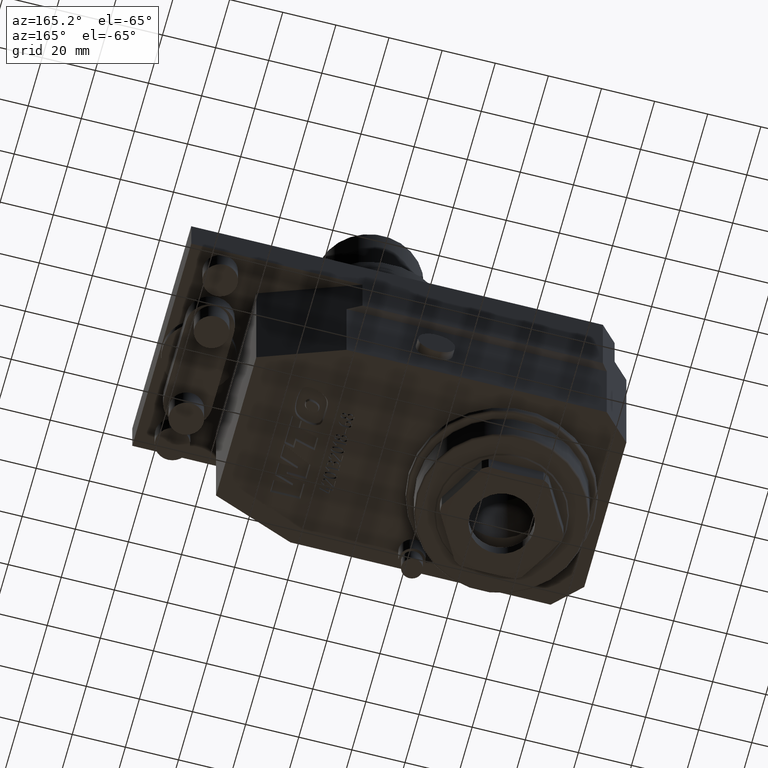
[diagram: clean part render]
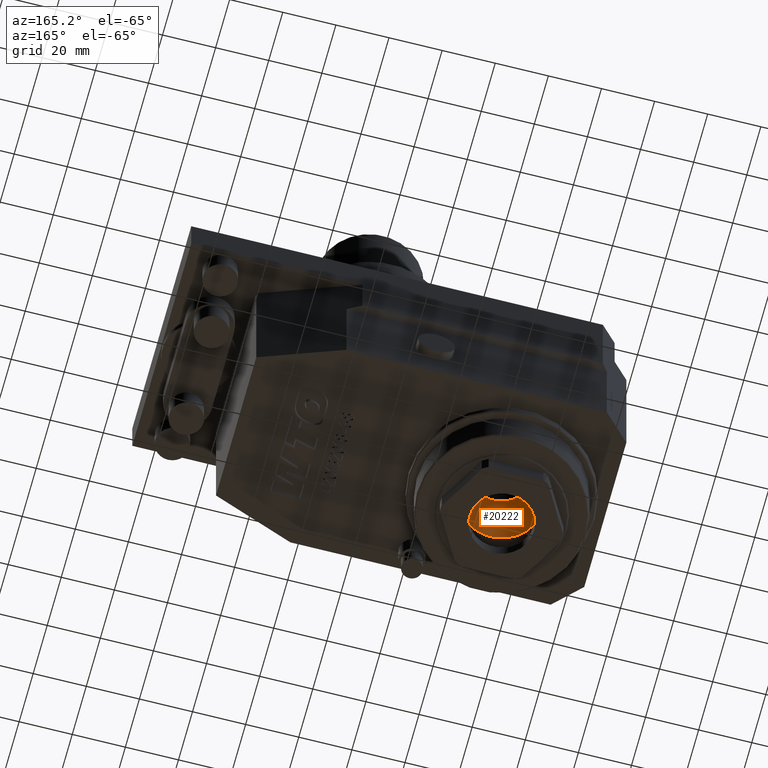
[diagram: same view with one face highlighted and labeled with its STEP entity id]
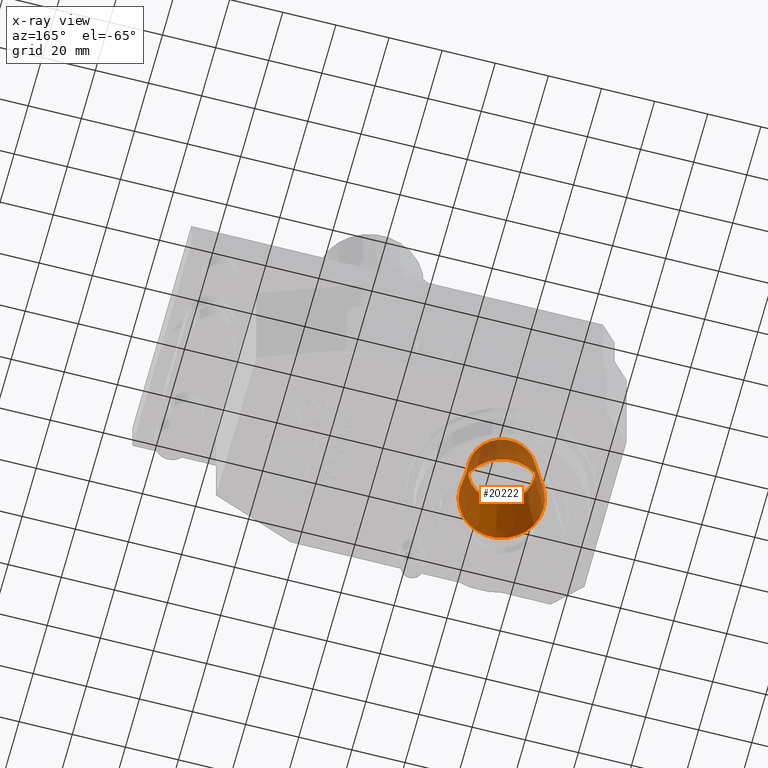
[diagram: x-ray of the same camera — body ghosted, the highlighted face saturated]
A machine part, auxiliary view. The second image highlights one B-rep face of the part: STEP entity #20222.
The next image is the same camera in x-ray: the body ghosted, the highlighted face saturated — about 31% of this face is hidden behind the body in this view.
In plain terms, the highlighted conical surface has half-angle 8 deg.
Its self-contained STEP definition (entity closure, byte-faithful):
#20069 = CONICAL_SURFACE('',#20070,20.015383832489,1.047197551197);
#20070 = AXIS2_PLACEMENT_3D('',#20071,#20072,#20073);
#20071 = CARTESIAN_POINT('',(-50.,0.E+000,-80.00481107418));
#20072 = DIRECTION('',(0.E+000,0.E+000,-1.));
#20073 = DIRECTION('',(-1.,0.E+000,0.E+000));
#20128 = EDGE_CURVE('',#20129,#20129,#20131,.T.);
#20129 = VERTEX_POINT('',#20130);
#20130 = CARTESIAN_POINT('',(-65.79976349976,0.E+000,-77.57092154027));
#20131 = SURFACE_CURVE('',#20132,(#20137,#20166),.PCURVE_S1.);
#20132 = CIRCLE('',#20133,15.79976349976);
#20133 = AXIS2_PLACEMENT_3D('',#20134,#20135,#20136);
#20134 = CARTESIAN_POINT('',(-50.,0.E+000,-77.57092154027));
#20135 = DIRECTION('',(0.E+000,0.E+000,-1.));
#20136 = DIRECTION('',(-1.,0.E+000,0.E+000));
#20137 = PCURVE('',#20069,#20138);
#20138 = DEFINITIONAL_REPRESENTATION('',(#20139),#20165);
#20139 = B_SPLINE_CURVE_WITH_KNOTS('',3,(#20140,#20141,#20142,#20143,
    #20144,#20145,#20146,#20147,#20148,#20149,#20150,#20151,#20152,
    #20153,#20154,#20155,#20156,#20157,#20158,#20159,#20160,#20161,
    #20162,#20163,#20164),.UNSPECIFIED.,.F.,.F.,(4,1,1,1,1,1,1,1,1,1,1,1
    ,1,1,1,1,1,1,1,1,1,1,4),(0.E+000,0.285599332145,0.571198664289,
    0.856797996434,1.142397328578,1.427996660723,1.713595992867,
    1.999195325012,2.284794657156,2.570393989301,2.855993321445,
    3.14159265359,3.427191985734,3.712791317879,3.998390650023,
    4.283989982168,4.569589314312,4.855188646457,5.140787978601,
    5.426387310746,5.711986642891,5.997585975035,6.28318530718),
  .QUASI_UNIFORM_KNOTS.);
#20140 = CARTESIAN_POINT('',(0.E+000,-2.433889533902));
#20141 = CARTESIAN_POINT('',(9.519977738151E-002,-2.433889533902));
#20142 = CARTESIAN_POINT('',(0.285599332145,-2.433889533902));
#20143 = CARTESIAN_POINT('',(0.571198664289,-2.433889533902));
#20144 = CARTESIAN_POINT('',(0.856797996434,-2.433889533902));
#20145 = CARTESIAN_POINT('',(1.142397328578,-2.433889533902));
#20146 = CARTESIAN_POINT('',(1.427996660723,-2.433889533902));
#20147 = CARTESIAN_POINT('',(1.713595992867,-2.433889533902));
#20148 = CARTESIAN_POINT('',(1.999195325012,-2.433889533902));
#20149 = CARTESIAN_POINT('',(2.284794657156,-2.433889533902));
#20150 = CARTESIAN_POINT('',(2.570393989301,-2.433889533902));
#20151 = CARTESIAN_POINT('',(2.855993321445,-2.433889533902));
#20152 = CARTESIAN_POINT('',(3.14159265359,-2.433889533902));
#20153 = CARTESIAN_POINT('',(3.427191985734,-2.433889533902));
#20154 = CARTESIAN_POINT('',(3.712791317879,-2.433889533902));
#20155 = CARTESIAN_POINT('',(3.998390650023,-2.433889533902));
#20156 = CARTESIAN_POINT('',(4.283989982168,-2.433889533902));
#20157 = CARTESIAN_POINT('',(4.569589314312,-2.433889533902));
#20158 = CARTESIAN_POINT('',(4.855188646457,-2.433889533902));
#20159 = CARTESIAN_POINT('',(5.140787978601,-2.433889533902));
#20160 = CARTESIAN_POINT('',(5.426387310746,-2.433889533902));
#20161 = CARTESIAN_POINT('',(5.711986642891,-2.433889533902));
#20162 = CARTESIAN_POINT('',(5.997585975035,-2.433889533902));
#20163 = CARTESIAN_POINT('',(6.187985529798,-2.433889533902));
#20164 = CARTESIAN_POINT('',(6.28318530718,-2.433889533902));
#20165 = ( GEOMETRIC_REPRESENTATION_CONTEXT(2) 
PARAMETRIC_REPRESENTATION_CONTEXT() REPRESENTATION_CONTEXT('2D SPACE',''
  ) );
#20166 = PCURVE('',#20167,#20172);
#20167 = CONICAL_SURFACE('',#20168,15.79976349976,0.13962634016);
#20168 = AXIS2_PLACEMENT_3D('',#20169,#20170,#20171);
#20169 = CARTESIAN_POINT('',(-50.,0.E+000,-77.57092154027));
#20170 = DIRECTION('',(0.E+000,0.E+000,-1.));
#20171 = DIRECTION('',(-1.,0.E+000,0.E+000));
#20172 = DEFINITIONAL_REPRESENTATION('',(#20173),#20199);
#20173 = B_SPLINE_CURVE_WITH_KNOTS('',3,(#20174,#20175,#20176,#20177,
    #20178,#20179,#20180,#20181,#20182,#20183,#20184,#20185,#20186,
    #20187,#20188,#20189,#20190,#20191,#20192,#20193,#20194,#20195,
    #20196,#20197,#20198),.UNSPECIFIED.,.F.,.F.,(4,1,1,1,1,1,1,1,1,1,1,1
    ,1,1,1,1,1,1,1,1,1,1,4),(0.E+000,0.285599332145,0.571198664289,
    0.856797996434,1.142397328578,1.427996660723,1.713595992867,
    1.999195325012,2.284794657156,2.570393989301,2.855993321445,
    3.14159265359,3.427191985734,3.712791317879,3.998390650023,
    4.283989982168,4.569589314312,4.855188646457,5.140787978601,
    5.426387310746,5.711986642891,5.997585975035,6.28318530718),
  .QUASI_UNIFORM_KNOTS.);
#20174 = CARTESIAN_POINT('',(0.E+000,7.344454532996E-016));
#20175 = CARTESIAN_POINT('',(9.519977738151E-002,4.352269352886E-016));
#20176 = CARTESIAN_POINT('',(0.285599332145,1.612757512023E-016));
#20177 = CARTESIAN_POINT('',(0.571198664289,2.51585374458E-016));
#20178 = CARTESIAN_POINT('',(0.856797996434,3.012736575647E-016));
#20179 = CARTESIAN_POINT('',(1.142397328578,1.221090188227E-017));
#20180 = CARTESIAN_POINT('',(1.427996660723,-3.501172650938E-016));
#20181 = CARTESIAN_POINT('',(1.713595992867,-8.063274810625E-017));
#20182 = CARTESIAN_POINT('',(1.999195325012,6.726482575188E-016));
#20183 = CARTESIAN_POINT('',(2.284794657156,-1.14106937537E-015));
#20184 = CARTESIAN_POINT('',(2.570393989301,9.53847430762E-016));
#20185 = CARTESIAN_POINT('',(2.855993321445,2.634614655202E-016));
#20186 = CARTESIAN_POINT('',(3.14159265359,-5.388023862434E-016));
#20187 = CARTESIAN_POINT('',(3.427191985734,4.228571728544E-016));
#20188 = CARTESIAN_POINT('',(3.712791317879,3.162646014251E-016));
#20189 = CARTESIAN_POINT('',(3.998390650023,-2.190246719556E-016));
#20190 = CARTESIAN_POINT('',(4.283989982168,5.598340863975E-016));
#20191 = CARTESIAN_POINT('',(4.569589314312,-5.514207670351E-016));
#20192 = CARTESIAN_POINT('',(4.855188646457,1.769580751436E-016));
#20193 = CARTESIAN_POINT('',(5.140787978601,-1.564115335392E-016));
#20194 = CARTESIAN_POINT('',(5.426387310746,4.486880590132E-016));
#20195 = CARTESIAN_POINT('',(5.711986642891,-1.694497959144E-016));
#20196 = CARTESIAN_POINT('',(5.997585975035,2.291111246445E-016));
#20197 = CARTESIAN_POINT('',(6.187985529798,5.576345108386E-016));
#20198 = CARTESIAN_POINT('',(6.28318530718,7.344454532996E-016));
#20199 = ( GEOMETRIC_REPRESENTATION_CONTEXT(2) 
PARAMETRIC_REPRESENTATION_CONTEXT() REPRESENTATION_CONTEXT('2D SPACE',''
  ) );
#20222 = ADVANCED_FACE('',(#20223),#20167,.F.);
#20223 = FACE_BOUND('',#20224,.F.);
#20224 = EDGE_LOOP('',(#20225,#20252,#20272,#20273));
#20225 = ORIENTED_EDGE('',*,*,#20226,.T.);
#20226 = EDGE_CURVE('',#20227,#20227,#20229,.T.);
#20227 = VERTEX_POINT('',#20228);
#20228 = CARTESIAN_POINT('',(-62.35,0.E+000,-53.0245787847));
#20229 = SURFACE_CURVE('',#20230,(#20235,#20241),.PCURVE_S1.);
#20230 = CIRCLE('',#20231,12.35);
#20231 = AXIS2_PLACEMENT_3D('',#20232,#20233,#20234);
#20232 = CARTESIAN_POINT('',(-50.,0.E+000,-53.0245787847));
#20233 = DIRECTION('',(0.E+000,0.E+000,-1.));
#20234 = DIRECTION('',(-1.,0.E+000,0.E+000));
#20235 = PCURVE('',#20167,#20236);
#20236 = DEFINITIONAL_REPRESENTATION('',(#20237),#20240);
#20237 = B_SPLINE_CURVE_WITH_KNOTS('',1,(#20238,#20239),.UNSPECIFIED.,
  .F.,.F.,(2,2),(0.E+000,6.28318530718),.PIECEWISE_BEZIER_KNOTS.);
#20238 = CARTESIAN_POINT('',(0.E+000,-24.54634275557));
#20239 = CARTESIAN_POINT('',(6.28318530718,-24.54634275557));
#20240 = ( GEOMETRIC_REPRESENTATION_CONTEXT(2) 
PARAMETRIC_REPRESENTATION_CONTEXT() REPRESENTATION_CONTEXT('2D SPACE',''
  ) );
#20241 = PCURVE('',#20242,#20247);
#20242 = CYLINDRICAL_SURFACE('',#20243,12.35);
#20243 = AXIS2_PLACEMENT_3D('',#20244,#20245,#20246);
#20244 = CARTESIAN_POINT('',(-50.,0.E+000,-99.));
#20245 = DIRECTION('',(0.E+000,0.E+000,-1.));
#20246 = DIRECTION('',(-1.,0.E+000,0.E+000));
#20247 = DEFINITIONAL_REPRESENTATION('',(#20248),#20251);
#20248 = B_SPLINE_CURVE_WITH_KNOTS('',1,(#20249,#20250),.UNSPECIFIED.,
  .F.,.F.,(2,2),(0.E+000,6.28318530718),.PIECEWISE_BEZIER_KNOTS.);
#20249 = CARTESIAN_POINT('',(0.E+000,-45.97542121529));
#20250 = CARTESIAN_POINT('',(6.28318530718,-45.97542121529));
#20251 = ( GEOMETRIC_REPRESENTATION_CONTEXT(2) 
PARAMETRIC_REPRESENTATION_CONTEXT() REPRESENTATION_CONTEXT('2D SPACE',''
  ) );
#20252 = ORIENTED_EDGE('',*,*,#20253,.T.);
#20253 = EDGE_CURVE('',#20227,#20129,#20254,.T.);
#20254 = SEAM_CURVE('',#20255,(#20258,#20265),.PCURVE_S1.);
#20255 = B_SPLINE_CURVE_WITH_KNOTS('',1,(#20256,#20257),.UNSPECIFIED.,
  .F.,.F.,(2,2),(-24.78757371907,0.E+000),.PIECEWISE_BEZIER_KNOTS.);
#20256 = CARTESIAN_POINT('',(-62.35,0.E+000,-53.0245787847));
#20257 = CARTESIAN_POINT('',(-65.79976349976,0.E+000,-77.57092154027));
#20258 = PCURVE('',#20167,#20259);
#20259 = DEFINITIONAL_REPRESENTATION('',(#20260),#20264);
#20260 = LINE('',#20261,#20262);
#20261 = CARTESIAN_POINT('',(6.28318530718,0.E+000));
#20262 = VECTOR('',#20263,1.);
#20263 = DIRECTION('',(0.E+000,1.));
#20264 = ( GEOMETRIC_REPRESENTATION_CONTEXT(2) 
PARAMETRIC_REPRESENTATION_CONTEXT() REPRESENTATION_CONTEXT('2D SPACE',''
  ) );
#20265 = PCURVE('',#20167,#20266);
#20266 = DEFINITIONAL_REPRESENTATION('',(#20267),#20271);
#20267 = LINE('',#20268,#20269);
#20268 = CARTESIAN_POINT('',(0.E+000,0.E+000));
#20269 = VECTOR('',#20270,1.);
#20270 = DIRECTION('',(0.E+000,1.));
#20271 = ( GEOMETRIC_REPRESENTATION_CONTEXT(2) 
PARAMETRIC_REPRESENTATION_CONTEXT() REPRESENTATION_CONTEXT('2D SPACE',''
  ) );
#20272 = ORIENTED_EDGE('',*,*,#20128,.F.);
#20273 = ORIENTED_EDGE('',*,*,#20253,.F.);